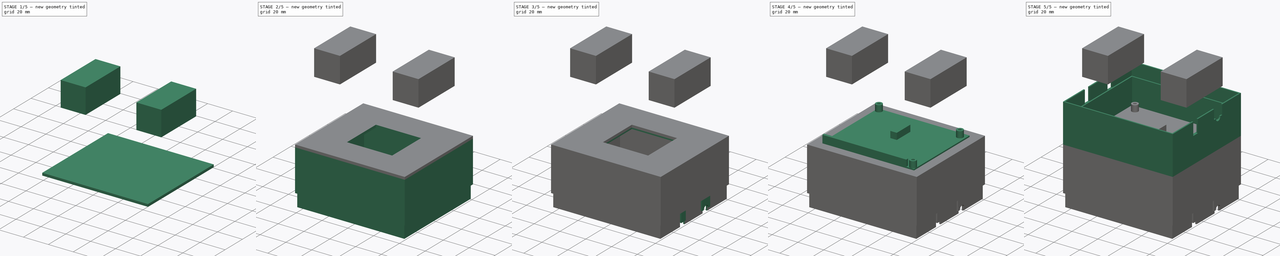
[diagram: build sequence overview — one tinted view per stage of 5, left to right]
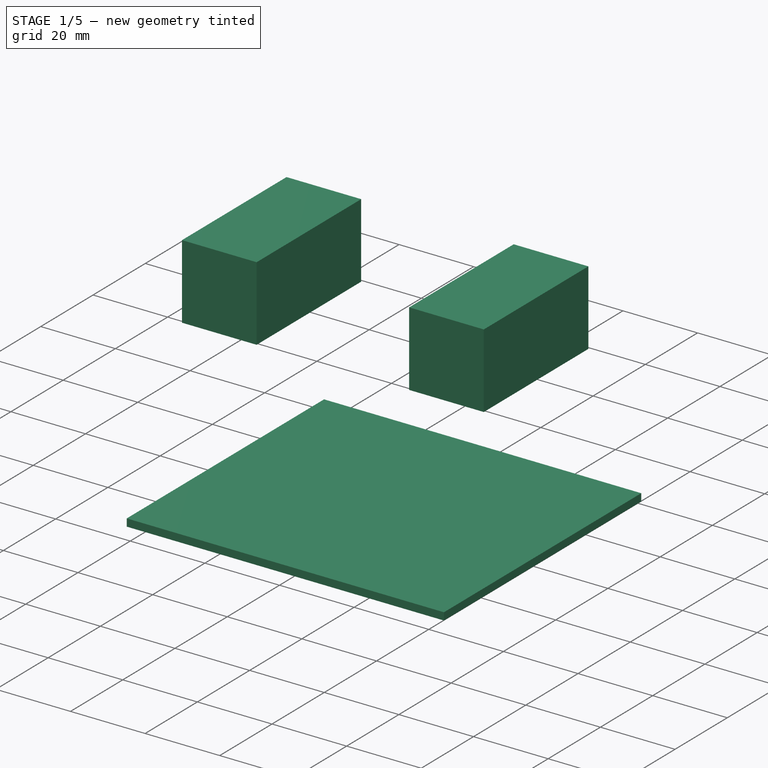
[diagram: stage 1 of 5 — iso view after this stage's code; geometry added in this stage tinted green]
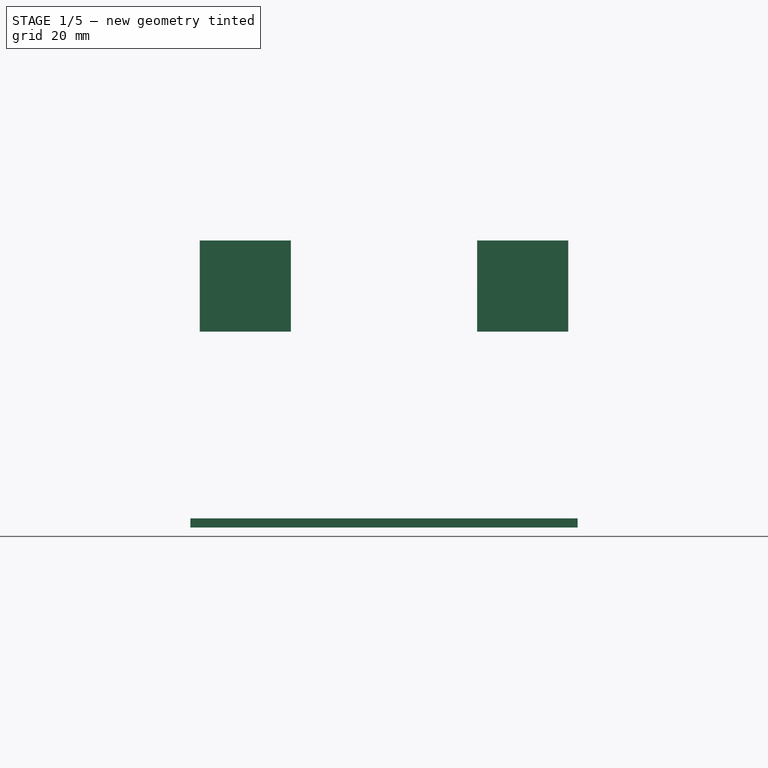
[diagram: stage 1 of 5 — front view after this stage's code; geometry added in this stage tinted green]
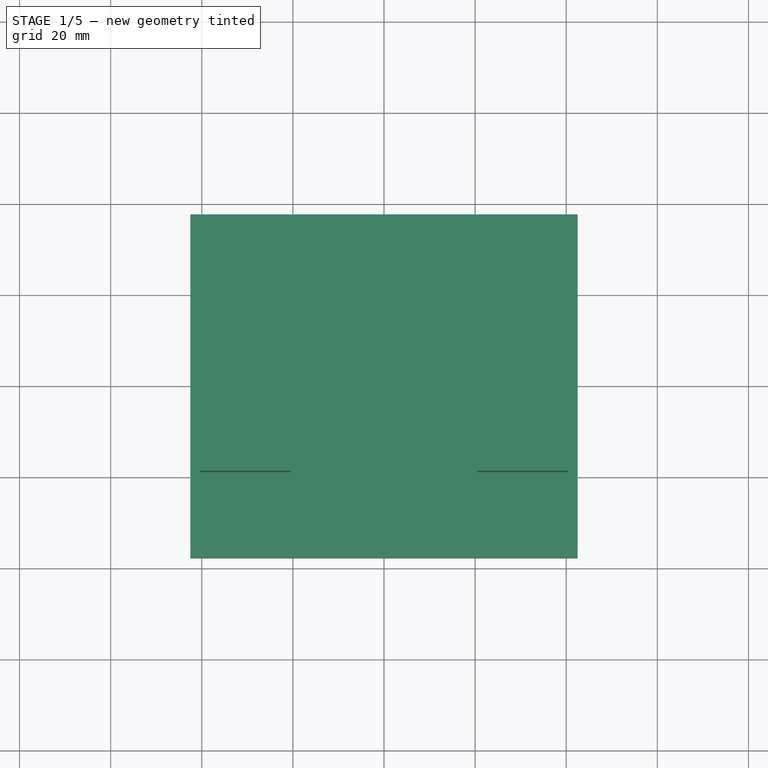
[diagram: stage 1 of 5 — top view after this stage's code; geometry added in this stage tinted green]
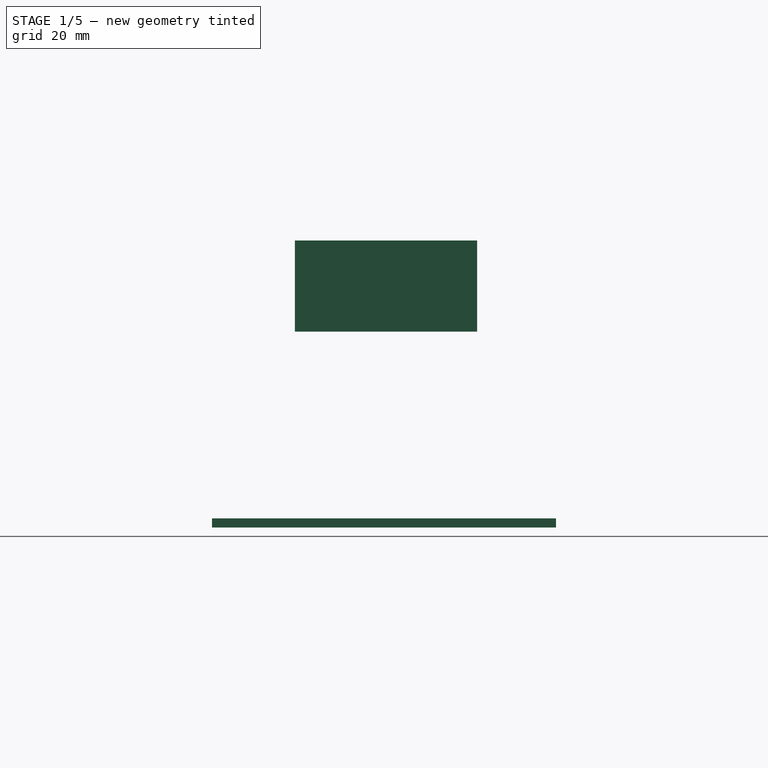
[diagram: stage 1 of 5 — right view after this stage's code; geometry added in this stage tinted green]
FCSTD DOCUMENT  (FreeCAD 0.19R)
Label: supply-module-box
License: All rights reserved
LicenseURL: http://en.wikipedia.org/wiki/All_rights_reserved
objects: Sketcher::SketchObject×19, PartDesign::Pad×12, PartDesign::Pocket×7, PartDesign::Body×3, PartDesign::Chamfer×1, Part::Mirroring×1, Part::Fuse×1
note: 64 computed .brp shape members not serialized (recipe doc carries the construction recipe); baked Part::Feature solids carry a one-line shape summary decoded from their .brp

FEATURE [Sketcher::SketchObject] Sketch006
  FullyConstrained = true
  MapMode = 5
  Support = -> [XY_Plane001]
  sketch-geometry (4):
    g0: LineSegment StartX=-42.5 StartY=37.75 StartZ=0 EndX=42.5 EndY=37.75 EndZ=0
    g1: LineSegment StartX=42.5 StartY=37.75 StartZ=0 EndX=42.5 EndY=-37.75 EndZ=0
    g2: LineSegment StartX=42.5 StartY=-37.75 StartZ=0 EndX=-42.5 EndY=-37.75 EndZ=0
    g3: LineSegment StartX=-42.5 StartY=-37.75 StartZ=0 EndX=-42.5 EndY=37.75 EndZ=0
  constraints (11):
    c: Coincident(g0,g1)
    c: Coincident(g1,g2)
    c: Coincident(g2,g3)
    c: Coincident(g3,g0)
    c: Horizontal(g0)
    c: Horizontal(g2)
    c: Vertical(g1)
    c: Vertical(g3)
    c: Symmetric(g1,g0,g-1)
    c: DistanceX(g0,g0) = 85
    c: DistanceY(g3,g3) = 75.5
FEATURE [PartDesign::Pad] Pad004
  Direction = (1,1,1)
  Length = 2
  Length2 = 100
  Profile = -> Sketch006
  Type = 0
FEATURE [Sketcher::SketchObject] Sketch012
  FullyConstrained = false
  MapMode = 5
  Support = -> [XY_Plane002]
  sketch-geometry (4):
    g0: LineSegment StartX=-9.56111 StartY=18.4455 StartZ=0 EndX=10.4389 EndY=18.4455 EndZ=0
    g1: LineSegment StartX=10.4389 StartY=18.4455 StartZ=0 EndX=10.4389 EndY=-21.5545 EndZ=0
    g2: LineSegment StartX=10.4389 StartY=-21.5545 StartZ=0 EndX=-9.56111 EndY=-21.5545 EndZ=0
    g3: LineSegment StartX=-9.56111 StartY=-21.5545 StartZ=0 EndX=-9.56111 EndY=18.4455 EndZ=0
  constraints (10):
    c: Coincident(g0,g1)
    c: Coincident(g1,g2)
    c: Coincident(g2,g3)
    c: Coincident(g3,g0)
    c: Horizontal(g0)
    c: Horizontal(g2)
    c: Vertical(g1)
    c: Vertical(g3)
    c: DistanceX(g0,g0) = 20
    c: DistanceY(g1,g1) = 40
FEATURE [PartDesign::Pad] Pad008
  Direction = (1,1,1)
  Length = 20
  Length2 = 100
  Profile = -> Sketch012
  Type = 0
FEATURE [PartDesign::Body] Body001  label="cup"
  Group = -> [Sketch006,Pad004,Sketch008,Pad005,Sketch009,Pad006,Sketch010,Pocket002,Sketch011,Pad007,Sketch014,Pocket004,Sketch015,Pad009,Sketch017,Pocket006,Sketch018,Pad010,Sketch019,Pad011,Chamfer]
  Origin = -> Origin001
  Placement = pos=(0,0,64) rot=(0,0,1;0rad)
  Tip = -> Chamfer
FEATURE [Part::Mirroring] mirror  label="alcaline-emulator-dont-print-one (mirrored)"
  Base = (0,-11,0)
  Normal = (1,0,0)
  Source = -> Body002
FEATURE [Part::Fuse] Fusion  label="alcaline-emulator-dont-print"
  Base = -> Body002
  Tool = -> mirror
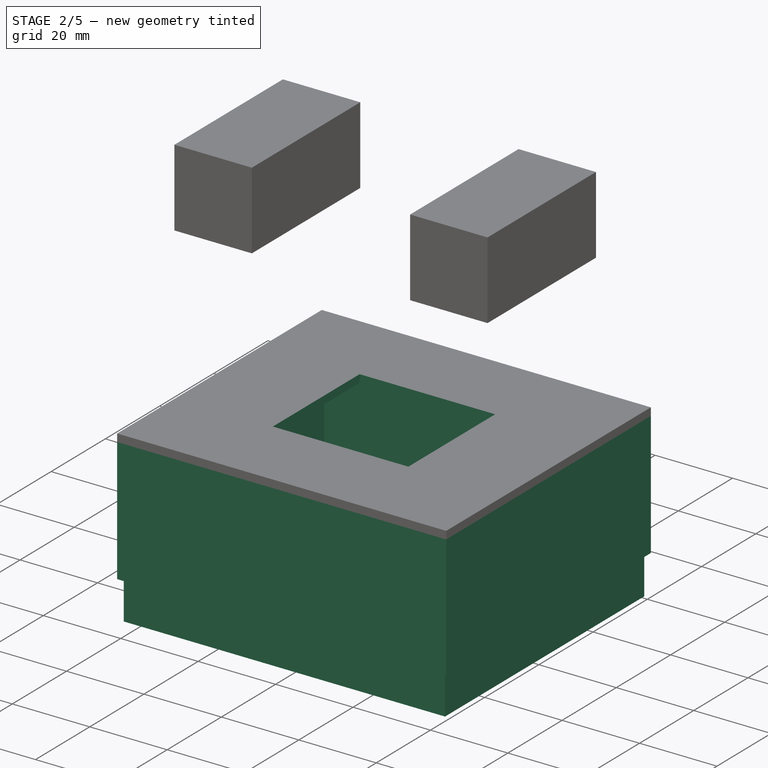
[diagram: stage 2 of 5 — iso view after this stage's code; geometry added in this stage tinted green]
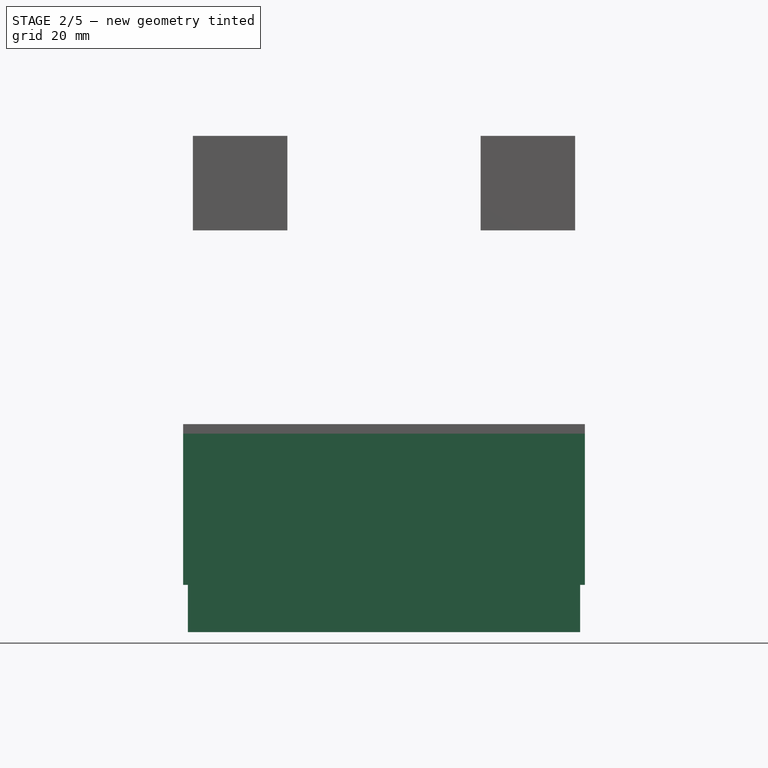
[diagram: stage 2 of 5 — front view after this stage's code; geometry added in this stage tinted green]
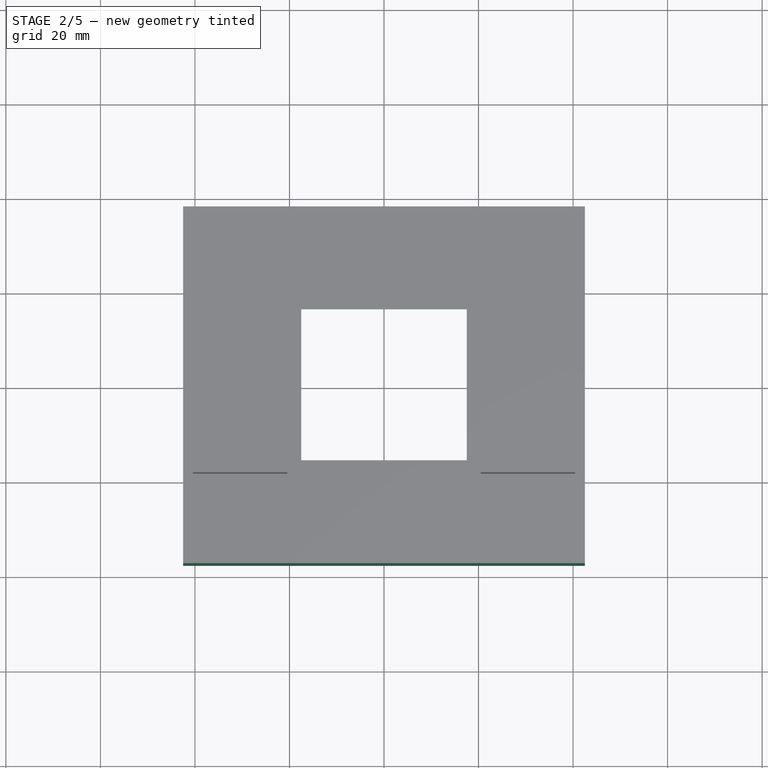
[diagram: stage 2 of 5 — top view after this stage's code; geometry added in this stage tinted green]
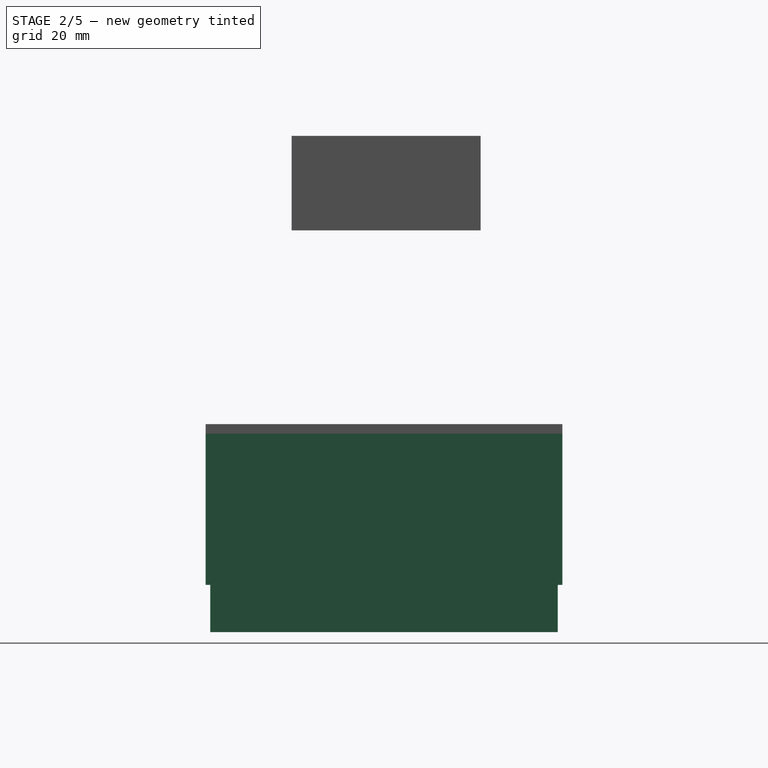
[diagram: stage 2 of 5 — right view after this stage's code; geometry added in this stage tinted green]
FEATURE [Sketcher::SketchObject] Sketch008
  ExternalGeometry = -> [Pad004]
  FullyConstrained = true
  MapMode = 5
  Placement = pos=(0,0,0) rot=(1,0,0;3.14159rad)
  Support = -> [Pad004]
  sketch-geometry (8):
    g0: LineSegment StartX=-42.5 StartY=37.75 StartZ=0 EndX=42.5 EndY=37.75 EndZ=0
    g1: LineSegment StartX=42.5 StartY=37.75 StartZ=0 EndX=42.5 EndY=-37.75 EndZ=0
    g2: LineSegment StartX=42.5 StartY=-37.75 StartZ=0 EndX=-42.5 EndY=-37.75 EndZ=0
    g3: LineSegment StartX=-42.5 StartY=-37.75 StartZ=0 EndX=-42.5 EndY=37.75 EndZ=0
    g4: LineSegment StartX=-40.5 StartY=35.75 StartZ=0 EndX=40.5 EndY=35.75 EndZ=0
    g5: LineSegment StartX=40.5 StartY=35.75 StartZ=0 EndX=40.5 EndY=-35.75 EndZ=0
    g6: LineSegment StartX=40.5 StartY=-35.75 StartZ=0 EndX=-40.5 EndY=-35.75 EndZ=0
    g7: LineSegment StartX=-40.5 StartY=-35.75 StartZ=0 EndX=-40.5 EndY=35.75 EndZ=0
  constraints (22):
    c: Coincident(g0,g1)
    c: Coincident(g1,g2)
    c: Coincident(g2,g3)
    c: Coincident(g3,g0)
    c: Horizontal(g0)
    c: Horizontal(g2)
    c: Vertical(g1)
    c: Vertical(g3)
    c: Coincident(g0,g-3)
    c: Coincident(g1,g-4)
    c: Coincident(g4,g5)
    c: Coincident(g5,g6)
    c: Coincident(g6,g7)
    c: Coincident(g7,g4)
    c: Horizontal(g4)
    c: Horizontal(g6)
    c: Vertical(g5)
    c: Vertical(g7)
    c: DistanceX(g0,g4) = 2
    c: DistanceX(g5,g1) = 2
    c: DistanceY(g4,g0) = 2
    c: DistanceY(g1,g5) = 2
FEATURE [PartDesign::Pad] Pad005
  BaseFeature = -> Pad004
  Direction = (1,1,1)
  Length = 32
  Length2 = 100
  Profile = -> Sketch008
  Type = 0
FEATURE [Sketcher::SketchObject] Sketch009
  ExternalGeometry = -> [Pad005]
  FullyConstrained = true
  MapMode = 5
  Placement = pos=(0,0,-32) rot=(1,0,0;3.14159rad)
  Support = -> [Pad005]
  sketch-geometry (8):
    g0: LineSegment StartX=-40.5 StartY=35.75 StartZ=0 EndX=40.5 EndY=35.75 EndZ=0
    g1: LineSegment StartX=40.5 StartY=35.75 StartZ=0 EndX=40.5 EndY=-35.75 EndZ=0
    g2: LineSegment StartX=40.5 StartY=-35.75 StartZ=0 EndX=-40.5 EndY=-35.75 EndZ=0
    g3: LineSegment StartX=-40.5 StartY=-35.75 StartZ=0 EndX=-40.5 EndY=35.75 EndZ=0
    g4: LineSegment StartX=-41.5 StartY=36.75 StartZ=0 EndX=41.5 EndY=36.75 EndZ=0
    g5: LineSegment StartX=41.5 StartY=36.75 StartZ=0 EndX=41.5 EndY=-36.75 EndZ=0
    g6: LineSegment StartX=41.5 StartY=-36.75 StartZ=0 EndX=-41.5 EndY=-36.75 EndZ=0
    g7: LineSegment StartX=-41.5 StartY=-36.75 StartZ=0 EndX=-41.5 EndY=36.75 EndZ=0
  constraints (22):
    c: Coincident(g0,g1)
    c: Coincident(g1,g2)
    c: Coincident(g2,g3)
    c: Coincident(g3,g0)
    c: Horizontal(g0)
    c: Horizontal(g2)
    c: Vertical(g1)
    c: Vertical(g3)
    c: Coincident(g0,g-3)
    c: Coincident(g1,g-4)
    c: Coincident(g4,g5)
    c: Coincident(g5,g6)
    c: Coincident(g6,g7)
    c: Coincident(g7,g4)
    c: Horizontal(g4)
    c: Horizontal(g6)
    c: Vertical(g5)
    c: Vertical(g7)
    c: DistanceX(g1,g5) = 1
    c: DistanceY(g5,g1) = 1
    c: DistanceY(g0,g4) = 1
    c: DistanceX(g4,g0) = 1
FEATURE [PartDesign::Pad] Pad006
  BaseFeature = -> Pad005
  Direction = (1,1,1)
  Length = 10
  Length2 = 100
  Profile = -> Sketch009
  Type = 0
FEATURE [Sketcher::SketchObject] Sketch010
  FullyConstrained = true
  MapMode = 5
  Placement = pos=(0,0,2) rot=(0,0,1;0rad)
  Support = -> [Pad006]
  sketch-geometry (4):
    g0: LineSegment StartX=-17.5 StartY=16 StartZ=0 EndX=17.5 EndY=16 EndZ=0
    g1: LineSegment StartX=17.5 StartY=16 StartZ=0 EndX=17.5 EndY=-16 EndZ=0
    g2: LineSegment StartX=17.5 StartY=-16 StartZ=0 EndX=-17.5 EndY=-16 EndZ=0
    g3: LineSegment StartX=-17.5 StartY=-16 StartZ=0 EndX=-17.5 EndY=16 EndZ=0
  constraints (11):
    c: Coincident(g0,g1)
    c: Coincident(g1,g2)
    c: Coincident(g2,g3)
    c: Coincident(g3,g0)
    c: Horizontal(g0)
    c: Horizontal(g2)
    c: Vertical(g1)
    c: Vertical(g3)
    c: Symmetric(g1,g0,g-1)
    c: DistanceX(g0,g0) = 35
    c: DistanceY(g1,g1) = 32
FEATURE [PartDesign::Pocket] Pocket002
  BaseFeature = -> Pad006
  Length = 5
  Length2 = 100
  Profile = -> Sketch010
  Type = 0
FEATURE [Sketcher::SketchObject] Sketch011
  ExternalGeometry = -> [Pocket002]
  FullyConstrained = true
  MapMode = 5
  Placement = pos=(0,0,0) rot=(1,0,0;3.14159rad)
  Support = -> [Pocket002]
  sketch-geometry (8):
    g0: LineSegment StartX=20.5 StartY=20 StartZ=0 EndX=40.5 EndY=20 EndZ=0
    g1: LineSegment StartX=40.5 StartY=20 StartZ=0 EndX=40.5 EndY=-20 EndZ=0
    g2: LineSegment StartX=40.5 StartY=-20 StartZ=0 EndX=20.5 EndY=-20 EndZ=0
    g3: LineSegment StartX=20.5 StartY=-20 StartZ=0 EndX=20.5 EndY=20 EndZ=0
    g4: LineSegment StartX=-40.5 StartY=20 StartZ=0 EndX=-20.5 EndY=20 EndZ=0
    g5: LineSegment StartX=-20.5 StartY=20 StartZ=0 EndX=-20.5 EndY=-20 EndZ=0
    g6: LineSegment StartX=-20.5 StartY=-20 StartZ=0 EndX=-40.5 EndY=-20 EndZ=0
    g7: LineSegment StartX=-40.5 StartY=-20 StartZ=0 EndX=-40.5 EndY=20 EndZ=0
  constraints (23):
    c: Coincident(g0,g1)
    c: Coincident(g1,g2)
    c: Coincident(g2,g3)
    c: Coincident(g3,g0)
    c: Horizontal(g0)
    c: Horizontal(g2)
    c: Vertical(g3)
    c: DistanceX(g0,g0) = 20
    c: DistanceY(g1,g1) = 40
    c: Symmetric(g0,g1,g-1)
    c: PointOnObject(g0,g-3)
    c: Coincident(g4,g5)
    c: Coincident(g5,g6)
    c: Coincident(g6,g7)
    c: Coincident(g7,g4)
    c: Horizontal(g4)
    c: Horizontal(g6)
    c: Vertical(g5)
    c: Vertical(g7)
    c: PointOnObject(g4,g-4)
    c: PointOnObject(g4,g0)
    c: PointOnObject(g5,g2)
    c: Equal(g0,g4)
FEATURE [PartDesign::Pad] Pad007
  BaseFeature = -> Pocket002
  Direction = (1,1,1)
  Length = 1
  Length2 = 100
  Profile = -> Sketch011
  Type = 0
FEATURE [Sketcher::SketchObject] Sketch014
  ExternalGeometry = -> [Pad007]
  FullyConstrained = true
  MapMode = 5
  Placement = pos=(-41.5,0,0) rot=(0.57735,-0.57735,-0.57735;2.0944rad)
  Support = -> [Pad007]
  sketch-geometry (8):
    g0: LineSegment StartX=-15 StartY=-39 StartZ=0 EndX=-10 EndY=-39 EndZ=0
    g1: LineSegment StartX=-10 StartY=-39 StartZ=0 EndX=-10 EndY=-42 EndZ=0
    g2: LineSegment StartX=-10 StartY=-42 StartZ=0 EndX=-15 EndY=-42 EndZ=0
    g3: LineSegment StartX=-15 StartY=-42 StartZ=0 EndX=-15 EndY=-39 EndZ=0
    g4: LineSegment StartX=10 StartY=-39 StartZ=0 EndX=15 EndY=-39 EndZ=0
    g5: LineSegment StartX=15 StartY=-39 StartZ=0 EndX=15 EndY=-42 EndZ=0
    g6: LineSegment StartX=15 StartY=-42 StartZ=0 EndX=10 EndY=-42 EndZ=0
    g7: LineSegment StartX=10 StartY=-42 StartZ=0 EndX=10 EndY=-39 EndZ=0
  constraints (23):
    c: Coincident(g0,g1)
    c: Coincident(g1,g2)
    c: Coincident(g2,g3)
    c: Coincident(g3,g0)
    c: Horizontal(g0)
    c: Horizontal(g2)
    c: Vertical(g1)
    c: Vertical(g3)
    c: Coincident(g4,g5)
    c: Coincident(g5,g6)
    c: Coincident(g6,g7)
    c: Coincident(g7,g4)
    c: Horizontal(g4)
    c: Horizontal(g6)
    c: Vertical(g5)
    c: Vertical(g7)
    c: DistanceX(g0,g0) = 5
    c: DistanceY(g1,g1) = 3
    c: Equal(g1,g7)
    c: Equal(g0,g4)
    c: Symmetric(g4,g0,g-2)
    c: DistanceX(g0,g4) = 20
    c: PointOnObject(g1,g-3)
FEATURE [PartDesign::Pocket] Pocket004
  BaseFeature = -> Pad007
  Length = 5
  Length2 = 100
  Profile = -> Sketch014
  Type = 0
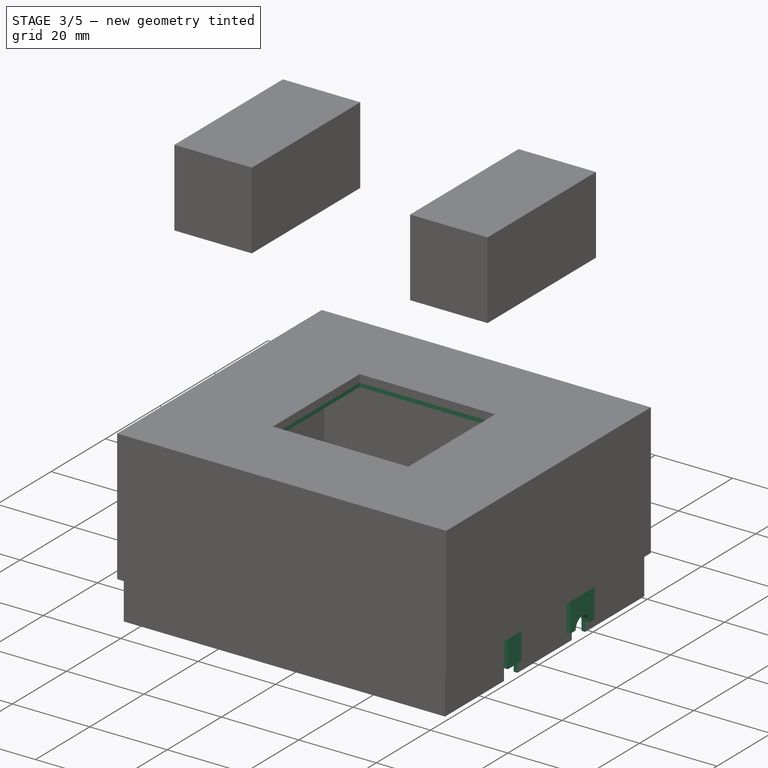
[diagram: stage 3 of 5 — iso view after this stage's code; geometry added in this stage tinted green]
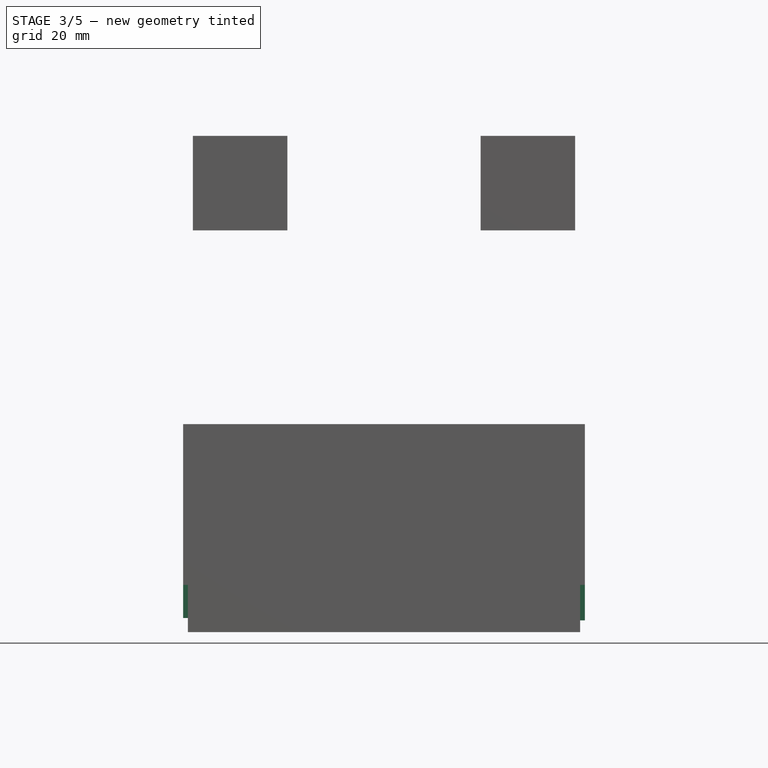
[diagram: stage 3 of 5 — front view after this stage's code; geometry added in this stage tinted green]
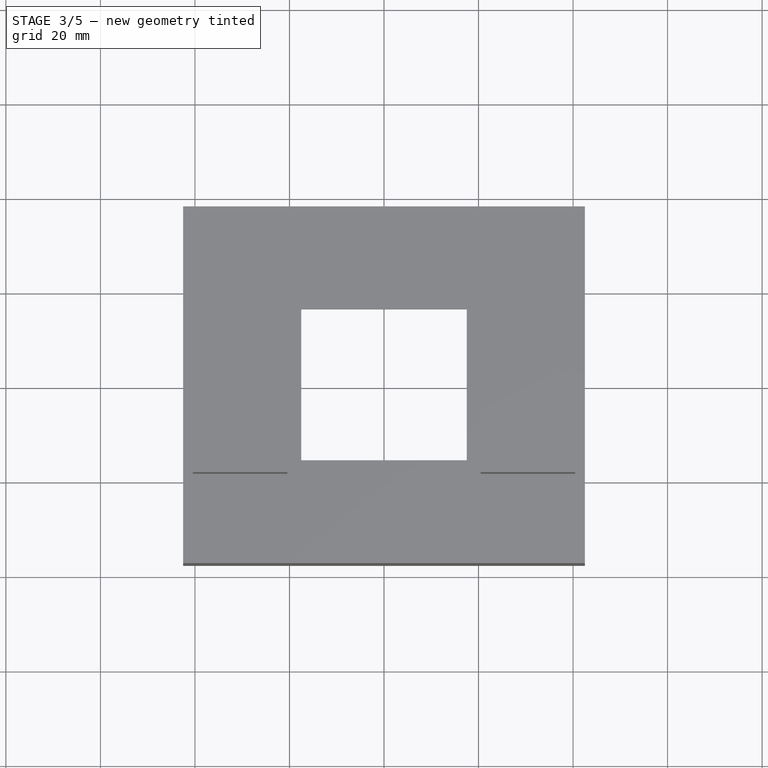
[diagram: stage 3 of 5 — top view after this stage's code; geometry added in this stage tinted green]
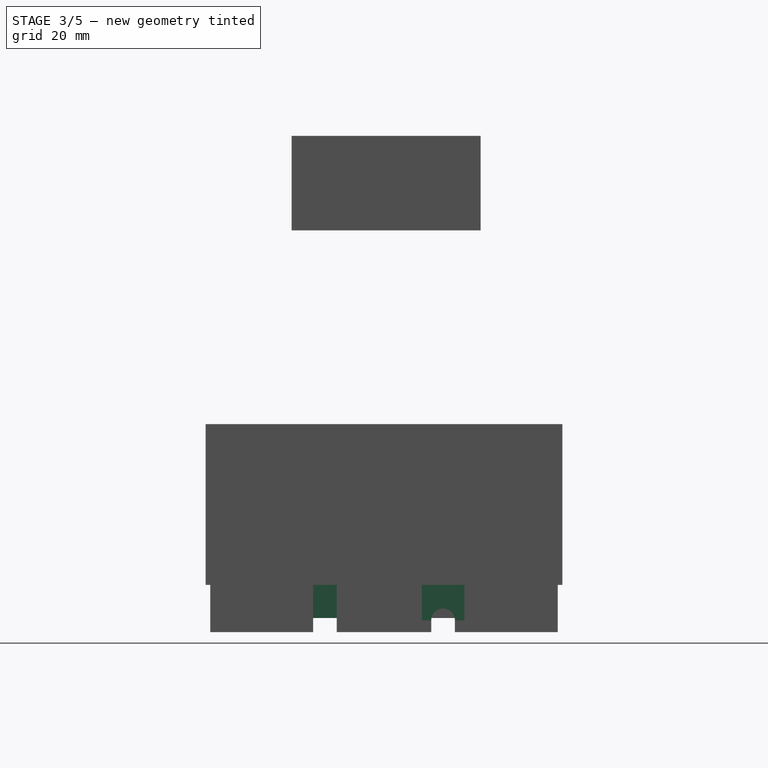
[diagram: stage 3 of 5 — right view after this stage's code; geometry added in this stage tinted green]
FEATURE [Sketcher::SketchObject] Sketch015
  ExternalGeometry = -> [Pocket004]
  FullyConstrained = true
  MapMode = 5
  Placement = pos=(-41.5,0,0) rot=(0.57735,-0.57735,-0.57735;2.0944rad)
  Support = -> [Pocket004]
  sketch-geometry (8):
    g0: LineSegment StartX=-15 StartY=-32 StartZ=0 EndX=-10 EndY=-32 EndZ=0
    g1: LineSegment StartX=-10 StartY=-32 StartZ=0 EndX=-10 EndY=-39 EndZ=0
    g2: LineSegment StartX=-10 StartY=-39 StartZ=0 EndX=-15 EndY=-39 EndZ=0
    g3: LineSegment StartX=-15 StartY=-39 StartZ=0 EndX=-15 EndY=-32 EndZ=0
    g4: LineSegment StartX=10 StartY=-32 StartZ=0 EndX=15 EndY=-32 EndZ=0
    g5: LineSegment StartX=15 StartY=-32 StartZ=0 EndX=15 EndY=-39 EndZ=0
    g6: LineSegment StartX=15 StartY=-39 StartZ=0 EndX=10 EndY=-39 EndZ=0
    g7: LineSegment StartX=10 StartY=-39 StartZ=0 EndX=10 EndY=-32 EndZ=0
  constraints (22):
    c: Coincident(g0,g1)
    c: Coincident(g1,g2)
    c: Coincident(g2,g3)
    c: Coincident(g3,g0)
    c: Horizontal(g0)
    c: Horizontal(g2)
    c: Vertical(g1)
    c: Vertical(g3)
    c: PointOnObject(g0,g-3)
    c: Coincident(g1,g-4)
    c: Coincident(g4,g5)
    c: Coincident(g5,g6)
    c: Coincident(g6,g7)
    c: Coincident(g7,g4)
    c: Horizontal(g4)
    c: Horizontal(g6)
    c: Vertical(g5)
    c: Vertical(g7)
    c: PointOnObject(g-4,g3)
    c: Equal(g1,g7)
    c: Equal(g4,g0)
    c: Symmetric(g0,g4,g-2)
FEATURE [PartDesign::Pad] Pad009
  BaseFeature = -> Pocket004
  Direction = (1,1,1)
  Length = 1
  Length2 = 100
  Profile = -> Sketch015
  Type = 0
FEATURE [PartDesign::Body] Body  label="box"
  Group = -> [Sketch,Pad,Sketch001,Pad001,Sketch002,Pad002,Sketch003,Pocket,Sketch004,Pad003,Sketch005,Pocket001,Sketch013,Pocket003,Sketch016,Pocket005]
  Origin = -> Origin
  Tip = -> Pocket005
FEATURE [Sketcher::SketchObject] Sketch017
  ExternalGeometry = -> [Pad009]
  FullyConstrained = true
  MapMode = 5
  Placement = pos=(41.5,0,0) rot=(0.57735,0.57735,0.57735;2.0944rad)
  Support = -> [Pad009]
  sketch-geometry (9):
    g0: LineSegment StartX=-15 StartY=-39 StartZ=0 EndX=-10 EndY=-39 EndZ=0
    g1: LineSegment StartX=-10 StartY=-39 StartZ=0 EndX=-10 EndY=-42 EndZ=0
    g2: LineSegment StartX=-10 StartY=-42 StartZ=0 EndX=-15 EndY=-42 EndZ=0
    g3: LineSegment StartX=-15 StartY=-42 StartZ=0 EndX=-15 EndY=-39 EndZ=0
    g4: GeomPoint X=0 Y=-42 Z=0
    g5: LineSegment StartX=10 StartY=-39.5 StartZ=0 EndX=10 EndY=-42 EndZ=0
    g6: LineSegment StartX=10 StartY=-42 StartZ=0 EndX=15 EndY=-42 EndZ=0
    g7: LineSegment StartX=15 StartY=-42 StartZ=0 EndX=15 EndY=-39.5 EndZ=0
    g8: ArcOfCircle CenterX=12.5 CenterY=-39.5 CenterZ=0 NormalX=0 NormalY=0 NormalZ=1 AngleXU=0 Radius=2.5 StartAngle=-2.4443e-12 EndAngle=3.14159
  constraints (27):
    c: Coincident(g0,g1)
    c: Coincident(g1,g2)
    c: Coincident(g2,g3)
    c: Coincident(g3,g0)
    c: Horizontal(g0)
    c: Horizontal(g2)
    c: Vertical(g1)
    c: Vertical(g3)
    c: PointOnObject(g1,g-3)
    c: DistanceY(g3,g3) = 3
    c: DistanceX(g0,g0) = 5
    c: PointOnObject(g4,g-2)
    c: PointOnObject(g4,g-3)
    c: DistanceX(g1,g4) = 10
    c: Vertical(g5)
    c: Coincident(g5,g6)
    c: PointOnObject(g6,g-3)
    c: Horizontal(g6)
    c: Coincident(g6,g7)
    c: Vertical(g7)
    c: DistanceX(g6,g6) = 5
    c: DistanceY(g7,g7) = 2.5
    c: Equal(g7,g5)
    c: DistanceX(g4,g5) = 10
    c: Coincident(g8,g5)
    c: Coincident(g8,g7)
    c: Symmetric(g5,g7,g8)
FEATURE [PartDesign::Pocket] Pocket006
  BaseFeature = -> Pad009
  Length = 5
  Length2 = 100
  Profile = -> Sketch017
  Type = 0
FEATURE [Sketcher::SketchObject] Sketch018
  ExternalGeometry = -> [Pocket006]
  FullyConstrained = true
  MapMode = 5
  Placement = pos=(41.5,0,0) rot=(0.57735,0.57735,0.57735;2.0944rad)
  Support = -> [Pocket006]
  sketch-geometry (10):
    g0: LineSegment StartX=-10 StartY=-39 StartZ=0 EndX=-15 EndY=-39 EndZ=0
    g1: LineSegment StartX=-15 StartY=-39 StartZ=0 EndX=-15 EndY=-32 EndZ=0
    g2: LineSegment StartX=-15 StartY=-32 StartZ=0 EndX=-10 EndY=-32 EndZ=0
    g3: LineSegment StartX=-10 StartY=-32 StartZ=0 EndX=-10 EndY=-39 EndZ=0
    g4: LineSegment StartX=10 StartY=-39.5 StartZ=0 EndX=8 EndY=-39.5 EndZ=0
    g5: LineSegment StartX=8 StartY=-39.5 StartZ=0 EndX=8 EndY=-32 EndZ=0
    g6: LineSegment StartX=8 StartY=-32 StartZ=0 EndX=17 EndY=-32 EndZ=0
    g7: LineSegment StartX=17 StartY=-32 StartZ=0 EndX=17 EndY=-39.5 EndZ=0
    g8: LineSegment StartX=17 StartY=-39.5 StartZ=0 EndX=15 EndY=-39.5 EndZ=0
    g9: ArcOfCircle CenterX=12.5 CenterY=-39.5 CenterZ=0 NormalX=0 NormalY=0 NormalZ=1 AngleXU=0 Radius=2.5 StartAngle=-2.4452e-12 EndAngle=3.14159
  constraints (28):
    c: Coincident(g0,g1)
    c: Coincident(g1,g2)
    c: Coincident(g2,g3)
    c: Coincident(g3,g0)
    c: Horizontal(g0)
    c: Horizontal(g2)
    c: Vertical(g1)
    c: Vertical(g3)
    c: Coincident(g0,g-4)
    c: PointOnObject(g-4,g1)
    c: PointOnObject(g1,g-3)
    c: Horizontal(g4)
    c: Coincident(g4,g5)
    c: PointOnObject(g5,g-3)
    c: Vertical(g5)
    c: Coincident(g5,g6)
    c: PointOnObject(g6,g-3)
    c: Coincident(g6,g7)
    c: Vertical(g7)
    c: Coincident(g7,g8)
    c: Coincident(g8,g-5)
    c: Horizontal(g8)
    c: Equal(g8,g4)
    c: DistanceX(g8,g8) = 2
    c: Coincident(g4,g-5)
    c: Coincident(g9,g-5)
    c: Coincident(g9,g4)
    c: Coincident(g9,g8)
FEATURE [PartDesign::Pad] Pad010
  BaseFeature = -> Pocket006
  Direction = (1,1,1)
  Length = 1
  Length2 = 100
  Profile = -> Sketch018
  Type = 0
FEATURE [Sketcher::SketchObject] Sketch019
  ExternalGeometry = -> [Pad010]
  FullyConstrained = true
  MapMode = 5
  Placement = pos=(0,0,0) rot=(1,0,0;3.14159rad)
  Support = -> [Pad010]
  sketch-geometry (8):
    g0: LineSegment StartX=-17.5 StartY=16 StartZ=0 EndX=17.5 EndY=16 EndZ=0
    g1: LineSegment StartX=17.5 StartY=16 StartZ=0 EndX=17.5 EndY=-16 EndZ=0
    g2: LineSegment StartX=17.5 StartY=-16 StartZ=0 EndX=-17.5 EndY=-16 EndZ=0
    g3: LineSegment StartX=-17.5 StartY=-16 StartZ=0 EndX=-17.5 EndY=16 EndZ=0
    g4: LineSegment StartX=-19.5 StartY=18 StartZ=0 EndX=19.5 EndY=18 EndZ=0
    g5: LineSegment StartX=19.5 StartY=18 StartZ=0 EndX=19.5 EndY=-18 EndZ=0
    g6: LineSegment StartX=19.5 StartY=-18 StartZ=0 EndX=-19.5 EndY=-18 EndZ=0
    g7: LineSegment StartX=-19.5 StartY=-18 StartZ=0 EndX=-19.5 EndY=18 EndZ=0
  constraints (22):
    c: Coincident(g0,g1)
    c: Coincident(g1,g2)
    c: Coincident(g2,g3)
    c: Coincident(g3,g0)
    c: Horizontal(g0)
    c: Horizontal(g2)
    c: Vertical(g1)
    c: Vertical(g3)
    c: Coincident(g0,g-3)
    c: Coincident(g1,g-4)
    c: Coincident(g4,g5)
    c: Coincident(g5,g6)
    c: Coincident(g6,g7)
    c: Coincident(g7,g4)
    c: Horizontal(g4)
    c: Horizontal(g6)
    c: Vertical(g5)
    c: Vertical(g7)
    c: DistanceX(g1,g5) = 2
    c: DistanceX(g4,g0) = 2
    c: DistanceY(g5,g1) = 2
    c: DistanceY(g0,g4) = 2
FEATURE [PartDesign::Pad] Pad011
  BaseFeature = -> Pad010
  Direction = (1,1,1)
  Length = 1
  Length2 = 100
  Profile = -> Sketch019
  Type = 0
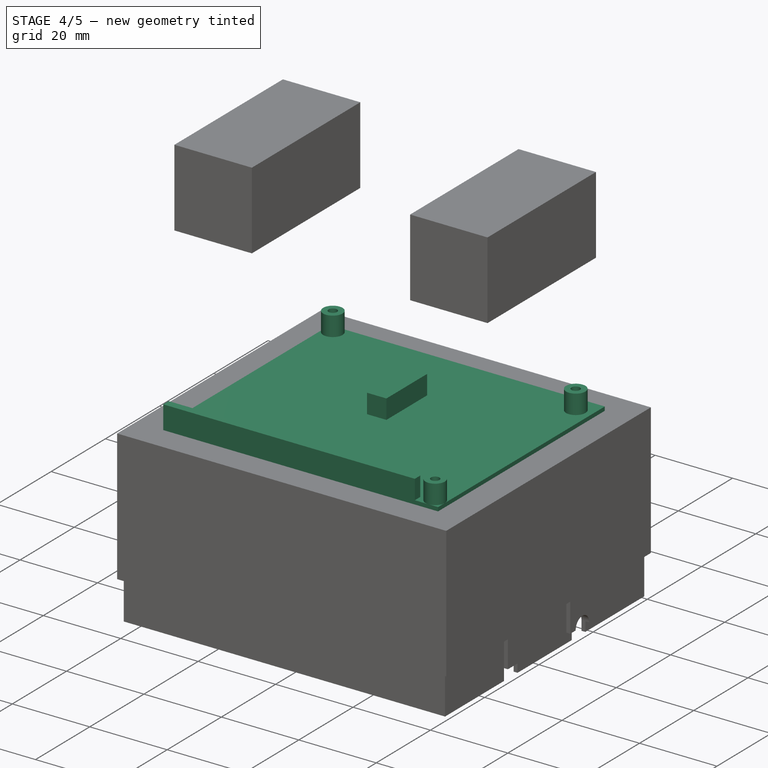
[diagram: stage 4 of 5 — iso view after this stage's code; geometry added in this stage tinted green]
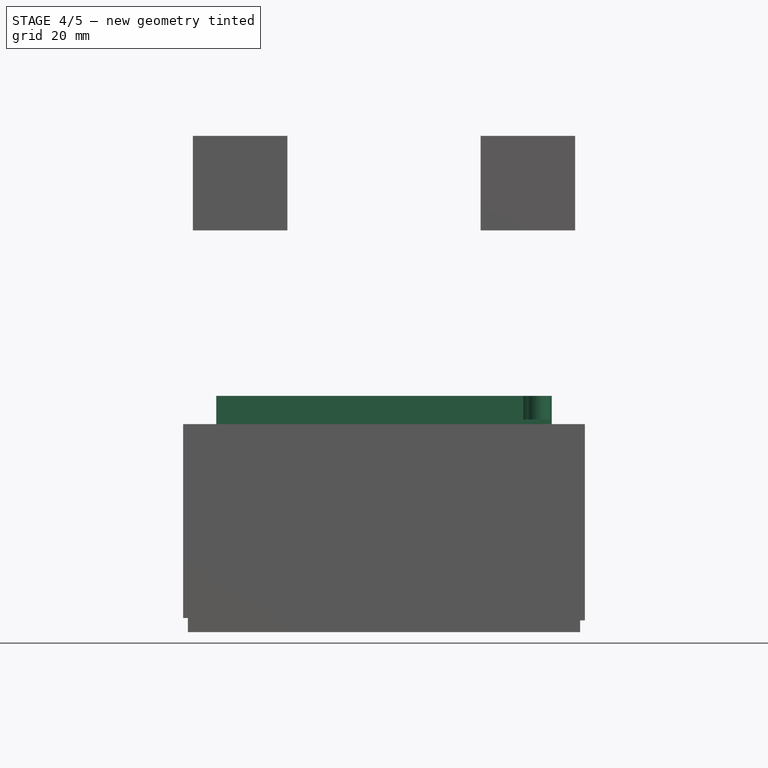
[diagram: stage 4 of 5 — front view after this stage's code; geometry added in this stage tinted green]
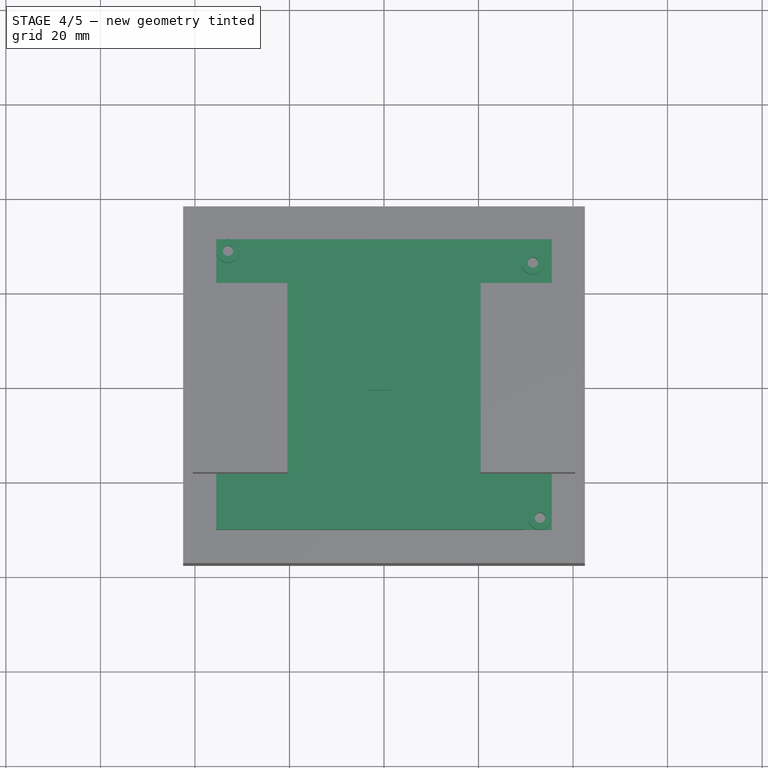
[diagram: stage 4 of 5 — top view after this stage's code; geometry added in this stage tinted green]
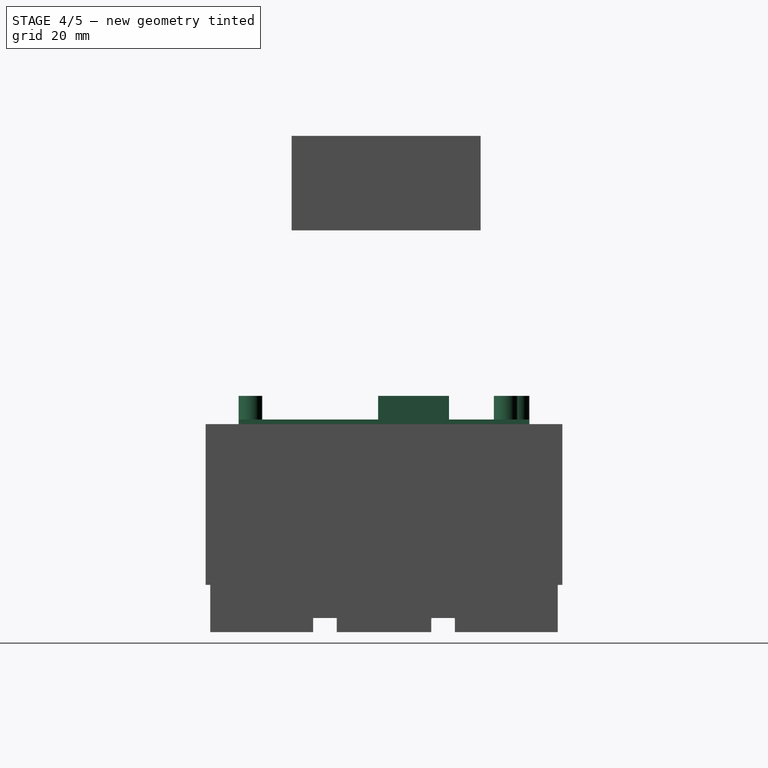
[diagram: stage 4 of 5 — right view after this stage's code; geometry added in this stage tinted green]
FEATURE [Sketcher::SketchObject] Sketch
  FullyConstrained = true
  MapMode = 5
  Support = -> [XY_Plane]
  sketch-geometry (4):
    g0: LineSegment StartX=-42.5 StartY=37.75 StartZ=0 EndX=42.5 EndY=37.75 EndZ=0
    g1: LineSegment StartX=42.5 StartY=37.75 StartZ=0 EndX=42.5 EndY=-37.75 EndZ=0
    g2: LineSegment StartX=42.5 StartY=-37.75 StartZ=0 EndX=-42.5 EndY=-37.75 EndZ=0
    g3: LineSegment StartX=-42.5 StartY=-37.75 StartZ=0 EndX=-42.5 EndY=37.75 EndZ=0
  constraints (11):
    c: Coincident(g0,g1)
    c: Coincident(g1,g2)
    c: Coincident(g2,g3)
    c: Coincident(g3,g0)
    c: Horizontal(g0)
    c: Horizontal(g2)
    c: Vertical(g1)
    c: Vertical(g3)
    c: Symmetric(g0,g2,g-1)
    c: DistanceX(g0,g0) = 85
    c: DistanceY(g1,g1) = 75.5
FEATURE [PartDesign::Pad] Pad
  Direction = (1,1,1)
  Length = 2
  Length2 = 100
  Profile = -> Sketch
  Type = 0
FEATURE [Sketcher::SketchObject] Sketch001
  FullyConstrained = true
  MapMode = 5
  Placement = pos=(0,0,2) rot=(0,0,1;0rad)
  Support = -> [Pad]
  sketch-geometry (4):
    g0: LineSegment StartX=-35.5 StartY=30.75 StartZ=0 EndX=35.5 EndY=30.75 EndZ=0
    g1: LineSegment StartX=35.5 StartY=30.75 StartZ=0 EndX=35.5 EndY=-30.75 EndZ=0
    g2: LineSegment StartX=35.5 StartY=-30.75 StartZ=0 EndX=-35.5 EndY=-30.75 EndZ=0
    g3: LineSegment StartX=-35.5 StartY=-30.75 StartZ=0 EndX=-35.5 EndY=30.75 EndZ=0
  constraints (11):
    c: Coincident(g0,g1)
    c: Coincident(g1,g2)
    c: Coincident(g2,g3)
    c: Coincident(g3,g0)
    c: Horizontal(g0)
    c: Horizontal(g2)
    c: Vertical(g1)
    c: Vertical(g3)
    c: Symmetric(g2,g0,g-1)
    c: DistanceX(g0,g0) = 71
    c: DistanceY(g1,g1) = 61.5
FEATURE [PartDesign::Pad] Pad001
  BaseFeature = -> Pad
  Direction = (1,1,1)
  Length = 1
  Length2 = 100
  Profile = -> Sketch001
  Type = 0
FEATURE [Sketcher::SketchObject] Sketch002
  ExternalGeometry = -> [Pad001]
  FullyConstrained = true
  MapMode = 5
  Placement = pos=(0,0,3) rot=(0,0,1;0rad)
  Support = -> [Pad001]
  sketch-geometry (11):
    g0: Circle CenterX=-33 CenterY=28.25 CenterZ=0 NormalX=0 NormalY=0 NormalZ=1 AngleXU=0 Radius=2.5
    g1: Circle CenterX=31.5 CenterY=25.75 CenterZ=0 NormalX=0 NormalY=0 NormalZ=1 AngleXU=0 Radius=2.5
    g2: Circle CenterX=33 CenterY=-28.25 CenterZ=0 NormalX=0 NormalY=0 NormalZ=1 AngleXU=0 Radius=2.5
    g3: LineSegment StartX=-35.5 StartY=-28.75 StartZ=0 EndX=29.5 EndY=-28.75 EndZ=0
    g4: LineSegment StartX=29.5 StartY=-28.75 StartZ=0 EndX=29.5 EndY=-30.75 EndZ=0
    g5: LineSegment StartX=29.5 StartY=-30.75 StartZ=0 EndX=-35.5 EndY=-30.75 EndZ=0
    g6: LineSegment StartX=-35.5 StartY=-30.75 StartZ=0 EndX=-35.5 EndY=-28.75 EndZ=0
    g7: LineSegment StartX=-3.5 StartY=13.75 StartZ=0 EndX=1.5 EndY=13.75 EndZ=0
    g8: LineSegment StartX=1.5 StartY=13.75 StartZ=0 EndX=1.5 EndY=-1.25 EndZ=0
    g9: LineSegment StartX=1.5 StartY=-1.25 StartZ=0 EndX=-3.5 EndY=-1.25 EndZ=0
    g10: LineSegment StartX=-3.5 StartY=-1.25 StartZ=0 EndX=-3.5 EndY=13.75 EndZ=0
  constraints (32):
    c: Coincident(g3,g4)
    c: Coincident(g4,g5)
    c: Coincident(g5,g6)
    c: Coincident(g6,g3)
    c: Horizontal(g3)
    c: Horizontal(g5)
    c: Vertical(g4)
    c: Vertical(g6)
    c: Diameter(g0) = 5
    c: Diameter(g1) = 5
    c: Diameter(g2) = 5
    c: Coincident(g5,g-3)
    c: DistanceY(g6,g6) = 2
    c: DistanceX(g3,g3) = 65
    c: DistanceX(g2,g-3) = 2.5
    c: DistanceY(g-3,g2) = 2.5
    c: DistanceX(g-4,g0) = 2.5
    c: DistanceY(g0,g-4) = 2.5
    c: DistanceY(g1,g-4) = 5
    c: DistanceX(g1,g-4) = 4
    c: Coincident(g7,g8)
    c: Coincident(g8,g9)
    c: Coincident(g9,g10)
    c: Coincident(g10,g7)
    c: Horizontal(g7)
    c: Horizontal(g9)
    c: Vertical(g8)
    c: Vertical(g10)
    c: DistanceX(g7,g7) = 5
    c: DistanceY(g8,g8) = 15
    c: DistanceX(g-4,g7) = 32
    c: DistanceY(g7,g-4) = 17
FEATURE [PartDesign::Pad] Pad002
  BaseFeature = -> Pad001
  Direction = (1,1,1)
  Length = 5
  Length2 = 100
  Profile = -> Sketch002
  Type = 0
FEATURE [Sketcher::SketchObject] Sketch003
  ExternalGeometry = -> [Pad002]
  FullyConstrained = true
  MapMode = 5
  Placement = pos=(0,0,8) rot=(0,0,1;0rad)
  Support = -> [Pad002]
  sketch-geometry (3):
    g0: Circle CenterX=33 CenterY=-28.25 CenterZ=0 NormalX=0 NormalY=0 NormalZ=1 AngleXU=0 Radius=1.1
    g1: Circle CenterX=31.5 CenterY=25.75 CenterZ=0 NormalX=0 NormalY=0 NormalZ=1 AngleXU=0 Radius=1.1
    g2: Circle CenterX=-33 CenterY=28.25 CenterZ=0 NormalX=0 NormalY=0 NormalZ=1 AngleXU=0 Radius=1.1
  constraints (6):
    c: Coincident(g0,g-5)
    c: Coincident(g1,g-4)
    c: Coincident(g2,g-3)
    c: Diameter(g2) = 2.2
    c: Diameter(g1) = 2.2
    c: Diameter(g0) = 2.2
FEATURE [PartDesign::Pocket] Pocket
  BaseFeature = -> Pad002
  Length = 7
  Length2 = 100
  Profile = -> Sketch003
  Type = 0
FEATURE [PartDesign::Chamfer] Chamfer
  Angle = 45
  Base = -> Pad011 [Edge87,Edge89,Edge90,Edge85]
  BaseFeature = -> Pad011
  ChamferType = 0
  FlipDirection = false
  Size = 0.9
  Size2 = 1
  SupportTransform = false
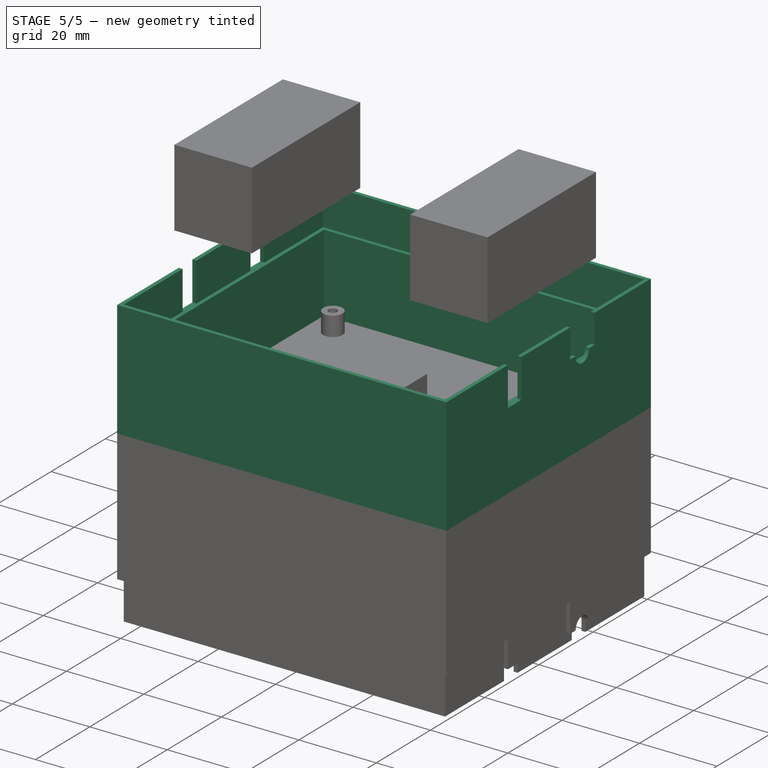
[diagram: stage 5 of 5 — iso view after this stage's code; geometry added in this stage tinted green]
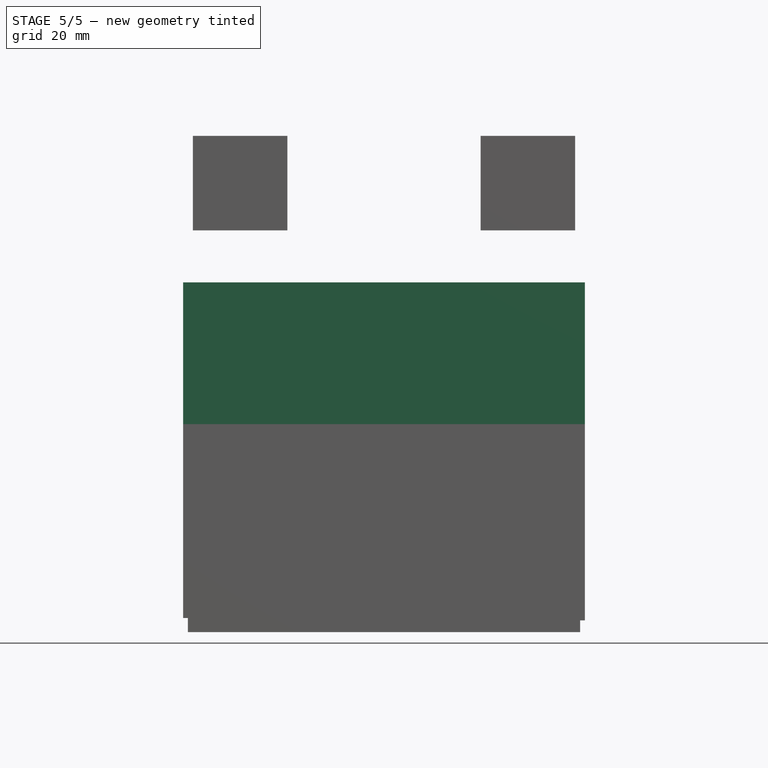
[diagram: stage 5 of 5 — front view after this stage's code; geometry added in this stage tinted green]
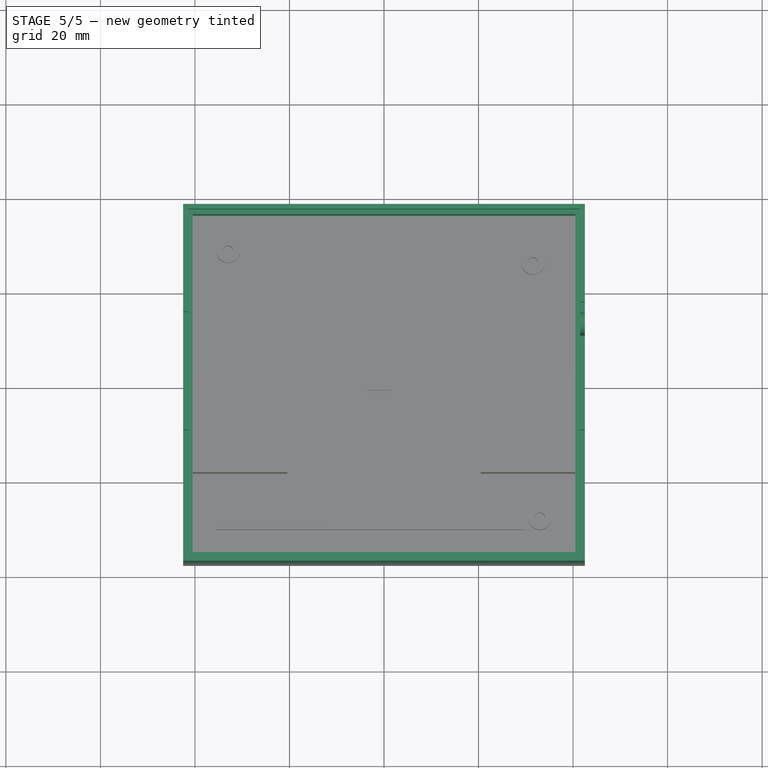
[diagram: stage 5 of 5 — top view after this stage's code; geometry added in this stage tinted green]
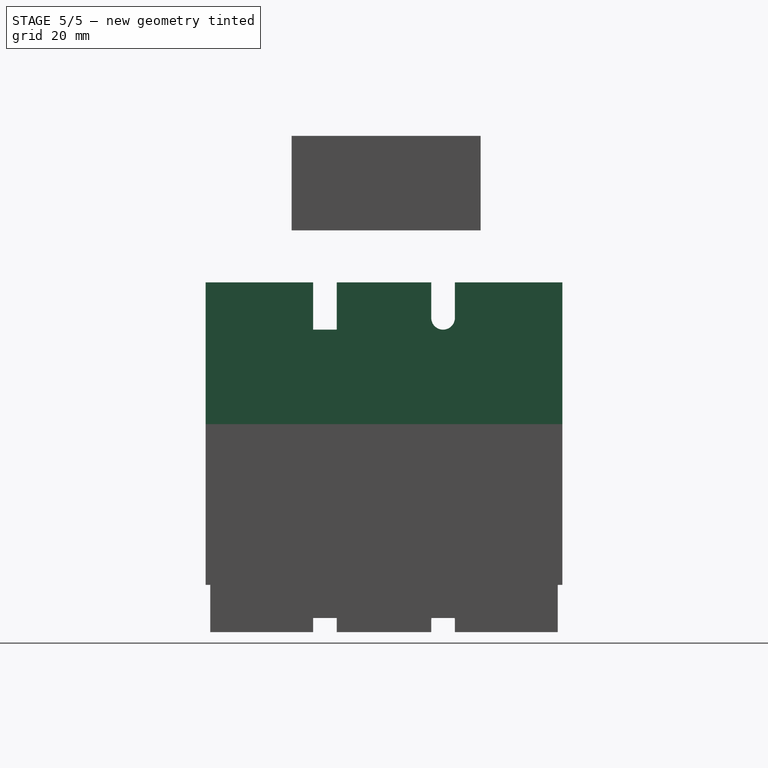
[diagram: stage 5 of 5 — right view after this stage's code; geometry added in this stage tinted green]
FEATURE [Sketcher::SketchObject] Sketch004
  ExternalGeometry = -> [Pocket]
  FullyConstrained = true
  MapMode = 5
  Placement = pos=(0,0,2) rot=(0,0,1;0rad)
  Support = -> [Pocket]
  sketch-geometry (8):
    g0: LineSegment StartX=-42.5 StartY=37.75 StartZ=0 EndX=42.5 EndY=37.75 EndZ=0
    g1: LineSegment StartX=42.5 StartY=37.75 StartZ=0 EndX=42.5 EndY=-37.75 EndZ=0
    g2: LineSegment StartX=42.5 StartY=-37.75 StartZ=0 EndX=-42.5 EndY=-37.75 EndZ=0
    g3: LineSegment StartX=-42.5 StartY=-37.75 StartZ=0 EndX=-42.5 EndY=37.75 EndZ=0
    g4: LineSegment StartX=-40.5 StartY=35.75 StartZ=0 EndX=40.5 EndY=35.75 EndZ=0
    g5: LineSegment StartX=40.5 StartY=35.75 StartZ=0 EndX=40.5 EndY=-35.75 EndZ=0
    g6: LineSegment StartX=40.5 StartY=-35.75 StartZ=0 EndX=-40.5 EndY=-35.75 EndZ=0
    g7: LineSegment StartX=-40.5 StartY=-35.75 StartZ=0 EndX=-40.5 EndY=35.75 EndZ=0
  constraints (22):
    c: Coincident(g0,g1)
    c: Coincident(g1,g2)
    c: Coincident(g2,g3)
    c: Coincident(g3,g0)
    c: Horizontal(g0)
    c: Horizontal(g2)
    c: Vertical(g1)
    c: Vertical(g3)
    c: Coincident(g0,g-3)
    c: Coincident(g1,g-4)
    c: Coincident(g4,g5)
    c: Coincident(g5,g6)
    c: Coincident(g6,g7)
    c: Coincident(g7,g4)
    c: Horizontal(g4)
    c: Horizontal(g6)
    c: Vertical(g5)
    c: Vertical(g7)
    c: DistanceX(g0,g4) = 2
    c: DistanceX(g5,g1) = 2
    c: DistanceY(g1,g5) = 2
    c: DistanceY(g4,g0) = 2
FEATURE [PartDesign::Pad] Pad003
  BaseFeature = -> Pocket
  Direction = (1,1,1)
  Length = 30
  Length2 = 100
  Profile = -> Sketch004
  Type = 0
FEATURE [Sketcher::SketchObject] Sketch005
  ExternalGeometry = -> [Pad003]
  FullyConstrained = true
  MapMode = 5
  Placement = pos=(0,0,32) rot=(0,0,1;0rad)
  Support = -> [Pad003]
  sketch-geometry (4):
    g0: LineSegment StartX=-41.5 StartY=36.75 StartZ=0 EndX=41.5 EndY=36.75 EndZ=0
    g1: LineSegment StartX=41.5 StartY=36.75 StartZ=0 EndX=41.5 EndY=-36.75 EndZ=0
    g2: LineSegment StartX=41.5 StartY=-36.75 StartZ=0 EndX=-41.5 EndY=-36.75 EndZ=0
    g3: LineSegment StartX=-41.5 StartY=-36.75 StartZ=0 EndX=-41.5 EndY=36.75 EndZ=0
  constraints (12):
    c: Coincident(g0,g1)
    c: Coincident(g1,g2)
    c: Coincident(g2,g3)
    c: Coincident(g3,g0)
    c: Horizontal(g0)
    c: Horizontal(g2)
    c: Vertical(g1)
    c: Vertical(g3)
    c: DistanceX(g1,g-4) = 1
    c: DistanceX(g-3,g0) = 1
    c: DistanceY(g0,g-3) = 1
    c: DistanceY(g-4,g1) = 1
FEATURE [PartDesign::Pocket] Pocket001
  BaseFeature = -> Pad003
  Length = 10
  Length2 = 100
  Profile = -> Sketch005
  Type = 0
FEATURE [PartDesign::Body] Body002  label="alcaline-emulator-dont-print-one"
  Group = -> [Sketch012,Pad008]
  Origin = -> Origin002
  Placement = pos=(30,2,43) rot=(0,0,1;0rad)
  Tip = -> Pad008
FEATURE [Sketcher::SketchObject] Sketch013
  ExternalGeometry = -> [Pocket001]
  FullyConstrained = true
  MapMode = 5
  Placement = pos=(-42.5,0,0) rot=(0.57735,-0.57735,-0.57735;2.0944rad)
  Support = -> [Pocket001]
  sketch-geometry (8):
    g0: LineSegment StartX=-15 StartY=32 StartZ=0 EndX=-10 EndY=32 EndZ=0
    g1: LineSegment StartX=-10 StartY=32 StartZ=0 EndX=-10 EndY=22 EndZ=0
    g2: LineSegment StartX=-10 StartY=22 StartZ=0 EndX=-15 EndY=22 EndZ=0
    g3: LineSegment StartX=-15 StartY=22 StartZ=0 EndX=-15 EndY=32 EndZ=0
    g4: LineSegment StartX=10 StartY=32 StartZ=0 EndX=15 EndY=32 EndZ=0
    g5: LineSegment StartX=15 StartY=32 StartZ=0 EndX=15 EndY=22 EndZ=0
    g6: LineSegment StartX=15 StartY=22 StartZ=0 EndX=10 EndY=22 EndZ=0
    g7: LineSegment StartX=10 StartY=22 StartZ=0 EndX=10 EndY=32 EndZ=0
  constraints (23):
    c: Coincident(g0,g1)
    c: Coincident(g1,g2)
    c: Coincident(g2,g3)
    c: Coincident(g3,g0)
    c: Horizontal(g0)
    c: Horizontal(g2)
    c: Vertical(g1)
    c: Vertical(g3)
    c: Coincident(g4,g5)
    c: Coincident(g5,g6)
    c: Coincident(g6,g7)
    c: Coincident(g7,g4)
    c: Horizontal(g4)
    c: Horizontal(g6)
    c: Vertical(g5)
    c: Vertical(g7)
    c: DistanceX(g0,g0) = 5
    c: DistanceY(g1,g1) = 10
    c: Equal(g4,g0)
    c: Equal(g7,g1)
    c: PointOnObject(g0,g-3)
    c: Symmetric(g0,g4,g-2)
    c: DistanceX(g0,g4) = 20
FEATURE [PartDesign::Pocket] Pocket003
  BaseFeature = -> Pocket001
  Length = 5
  Length2 = 100
  Profile = -> Sketch013
  Type = 0
FEATURE [Sketcher::SketchObject] Sketch016
  ExternalGeometry = -> [Pocket003]
  FullyConstrained = true
  MapMode = 5
  Placement = pos=(42.5,0,0) rot=(0.57735,0.57735,0.57735;2.0944rad)
  Support = -> [Pocket003]
  sketch-geometry (11):
    g0: LineSegment StartX=8 StartY=32 StartZ=0 EndX=17 EndY=32 EndZ=0
    g1: ArcOfCircle CenterX=12.5 CenterY=24.5 CenterZ=0 NormalX=0 NormalY=0 NormalZ=1 AngleXU=0 Radius=2.5 StartAngle=3.14159 EndAngle=6.28319
    g2: LineSegment StartX=-15 StartY=32 StartZ=0 EndX=-10 EndY=32 EndZ=0
    g3: LineSegment StartX=-10 StartY=32 StartZ=0 EndX=-10 EndY=22 EndZ=0
    g4: LineSegment StartX=-10 StartY=22 StartZ=0 EndX=-15 EndY=22 EndZ=0
    g5: LineSegment StartX=-15 StartY=22 StartZ=0 EndX=-15 EndY=32 EndZ=0
    g6: LineSegment StartX=8 StartY=32 StartZ=0 EndX=8 EndY=24.5 EndZ=0
    g7: LineSegment StartX=8 StartY=24.5 StartZ=0 EndX=10 EndY=24.5 EndZ=0
    g8: LineSegment StartX=17 StartY=32 StartZ=0 EndX=17 EndY=24.5 EndZ=0
    g9: LineSegment StartX=17 StartY=24.5 StartZ=0 EndX=15 EndY=24.5 EndZ=0
    g10: GeomPoint X=0 Y=32 Z=0
  constraints (33):
    c: PointOnObject(g0,g-3)
    c: PointOnObject(g0,g-3)
    c: DistanceX(g0,g0) = 9
    c: Symmetric(g1,g1,g1)
    c: Coincident(g2,g3)
    c: Coincident(g3,g4)
    c: Coincident(g4,g5)
    c: Coincident(g5,g2)
    c: Horizontal(g2)
    c: Horizontal(g4)
    c: Vertical(g3)
    c: Vertical(g5)
    c: DistanceX(g2,g2) = 5
    c: DistanceY(g3,g3) = 10
    c: Coincident(g6,g0)
    c: Vertical(g6)
    c: Coincident(g7,g6)
    c: Horizontal(g7)
    c: Coincident(g8,g0)
    c: Vertical(g8)
    c: Coincident(g9,g8)
    c: Horizontal(g9)
    c: Equal(g6,g8)
    c: Equal(g9,g7)
    c: DistanceX(g9,g9) = 2
    c: DistanceY(g8,g8) = 7.5
    c: Coincident(g9,g1)
    c: Coincident(g1,g7)
    c: PointOnObject(g10,g-2)
    c: PointOnObject(g10,g-3)
    c: DistanceX(g2,g10) = 10
    c: DistanceX(g10,g0) = 8
    c: PointOnObject(g10,g2)
FEATURE [PartDesign::Pocket] Pocket005
  BaseFeature = -> Pocket003
  Length = 5
  Length2 = 100
  Profile = -> Sketch016
  Type = 0
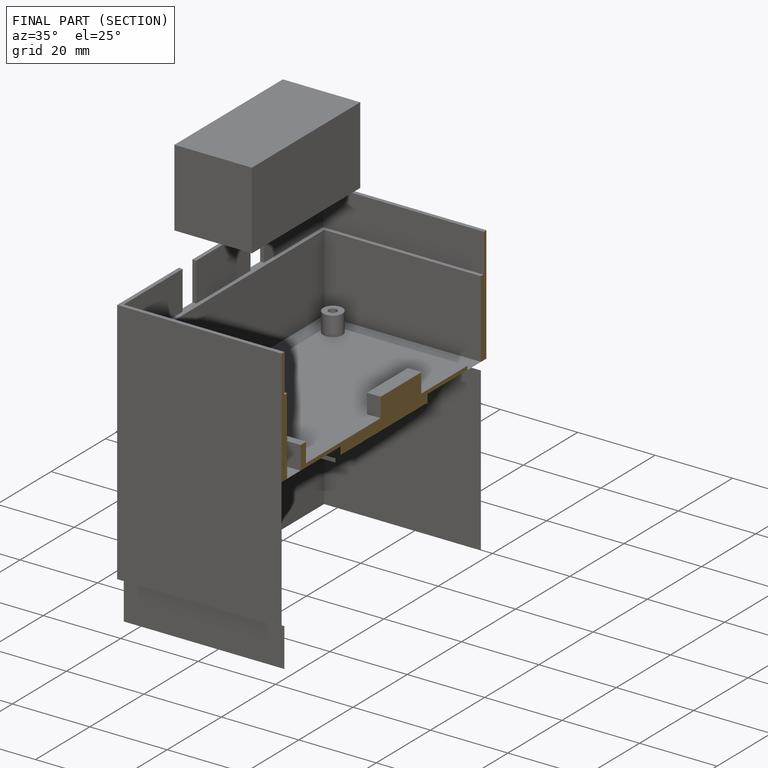
[diagram: finished part — half-section view (interior)]
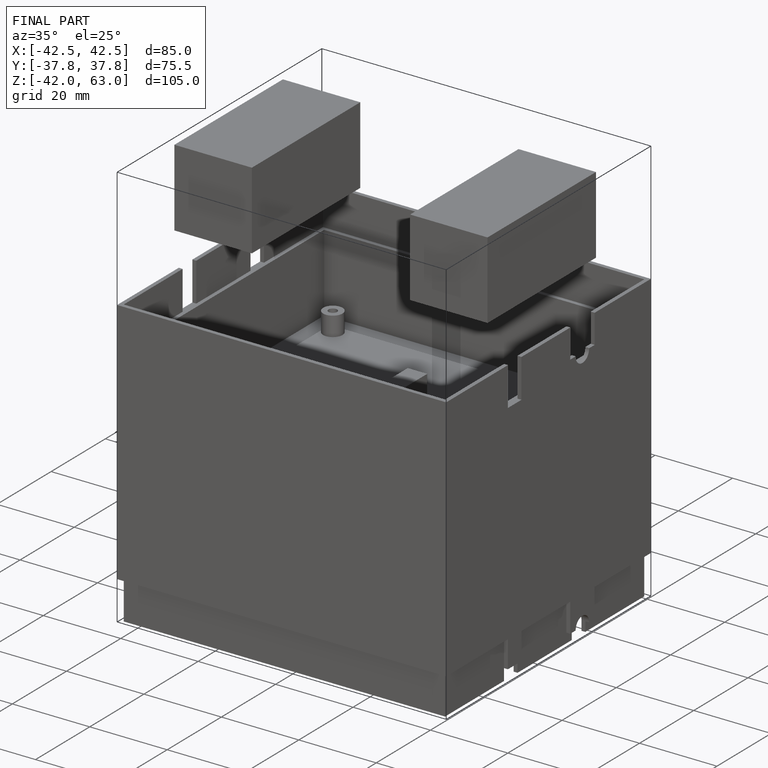
[diagram: finished part — iso view with bounding-box wireframe]
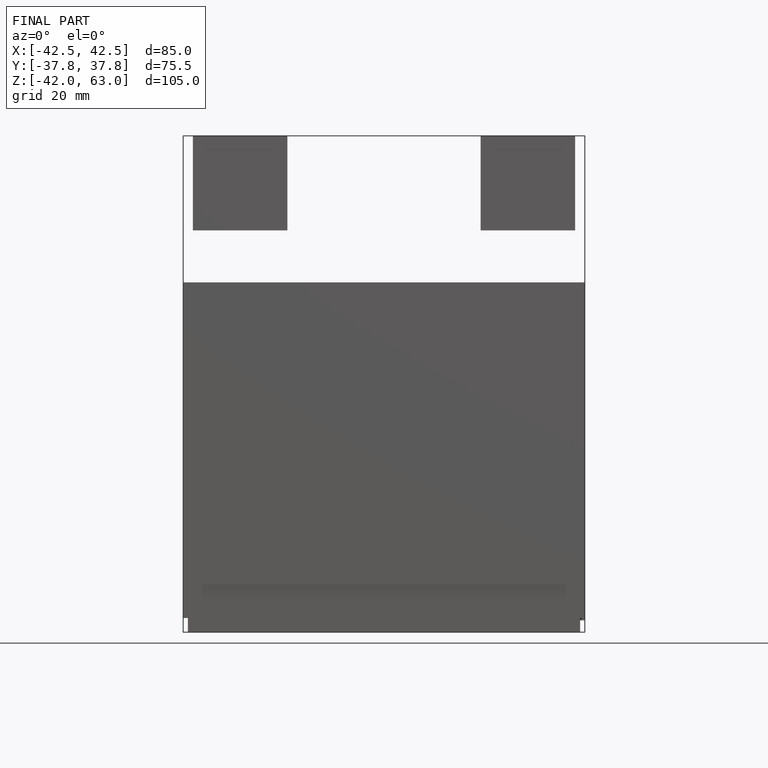
[diagram: finished part — front view with bounding-box wireframe]
